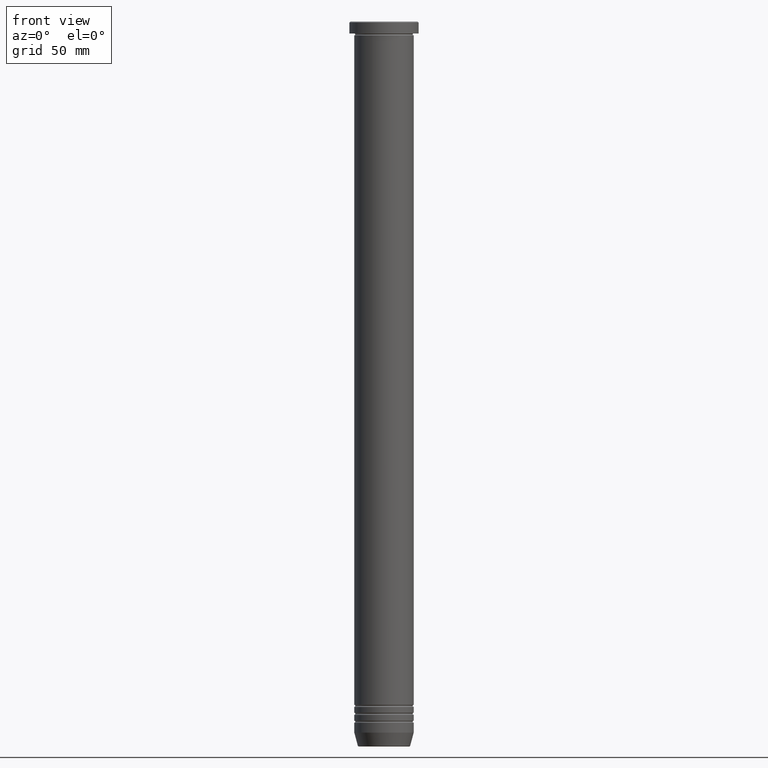
[diagram: clean part render]
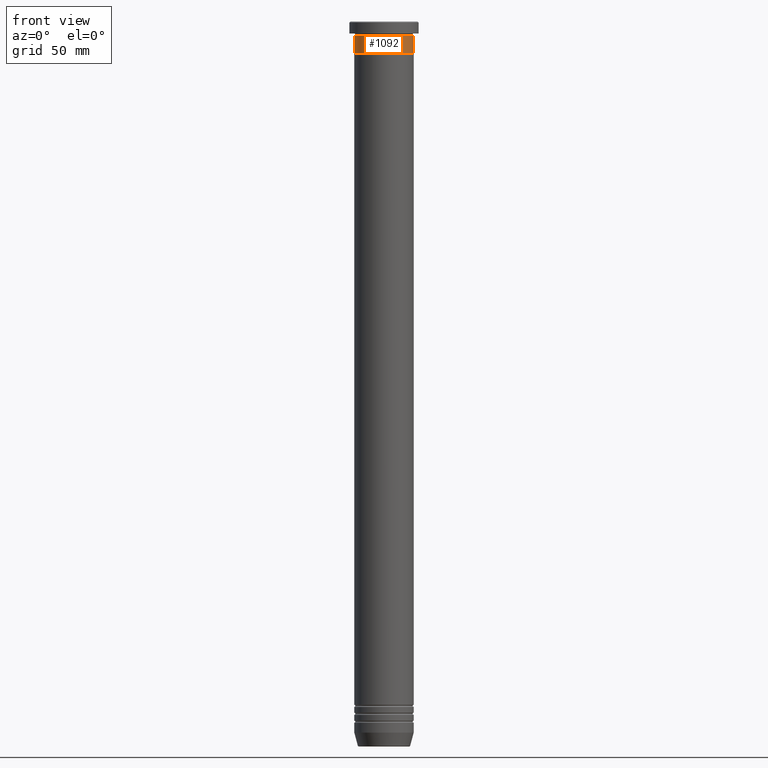
[diagram: same view with one face highlighted and labeled with its STEP entity id]
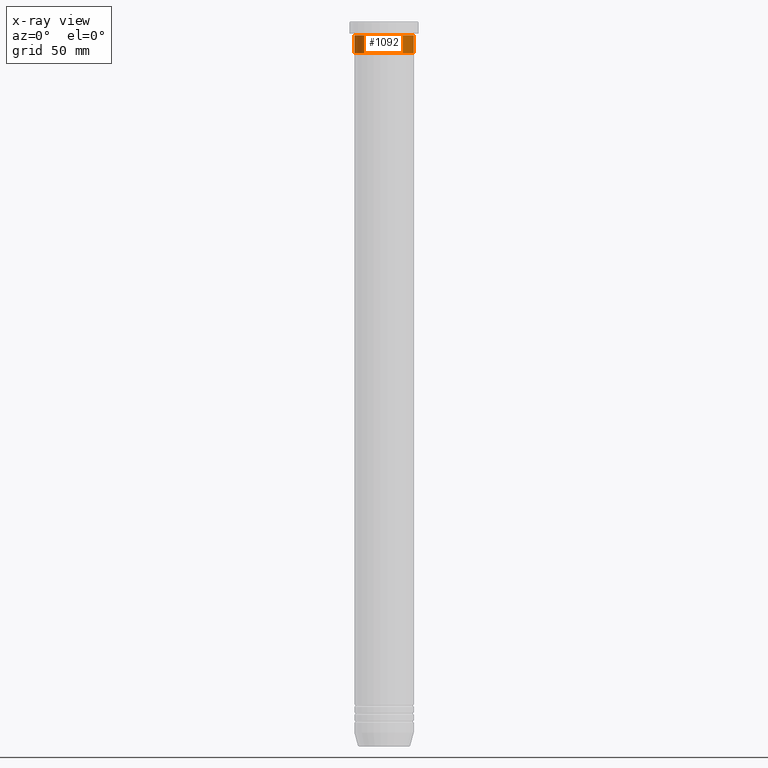
[diagram: x-ray of the same camera — body ghosted, the highlighted face saturated]
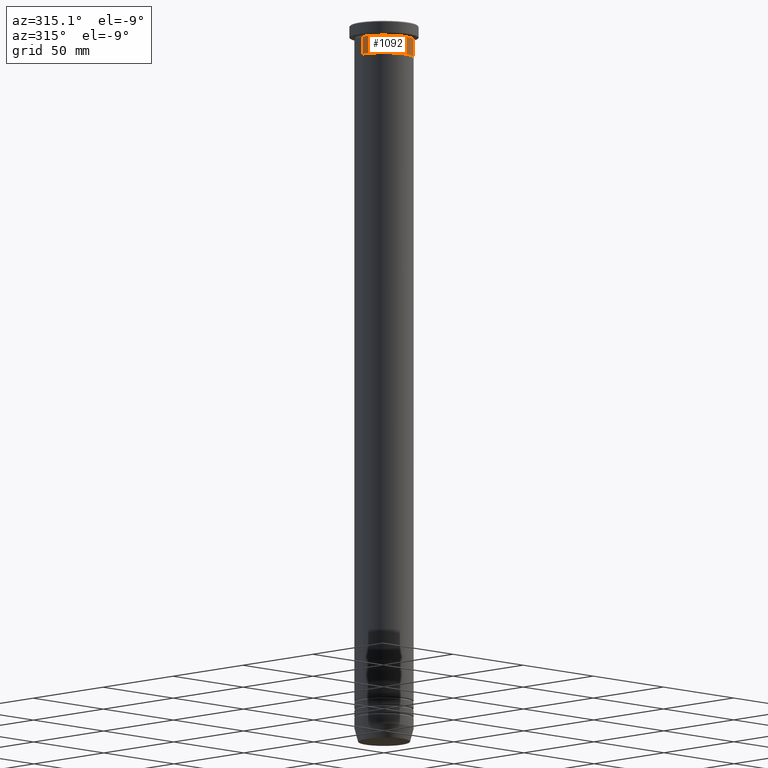
[diagram: same view with one face highlighted and labeled with its STEP entity id]
A machine part, front view. The second image highlights one B-rep face of the part: STEP entity #1092.
The next image is the same camera in x-ray: the body ghosted, the highlighted face saturated — about 0% of this face is hidden behind the body in this view.
A second angle (auxiliary view) of the same face is appended — the face is thin or edge-on in the first view.
In plain terms, the highlighted cylindrical surface (edge-blend (fillet) strip) has radius 15 mm, axis along (-0, -0, 1).
Its self-contained STEP definition (entity closure, byte-faithful):
#1 = EDGE_CURVE ( 'NONE', #826, #245, #367, .T. ) ;
#65 = DIRECTION ( 'NONE',  ( -0.000000000000000000, -0.000000000000000000, 1.000000000000000000 ) ) ;
#78 = DIRECTION ( 'NONE',  ( -0.000000000000000000, -0.000000000000000000, 1.000000000000000000 ) ) ;
#83 = EDGE_LOOP ( 'NONE', ( #755, #401, #418, #286 ) ) ;
#109 = CARTESIAN_POINT ( 'NONE',  ( 15.00000000000000000, 0.000000000000000000, -16.00000000000000000 ) ) ;
#124 = DIRECTION ( 'NONE',  ( 1.000000000000000000, 0.000000000000000000, 0.000000000000000000 ) ) ;
#148 = DIRECTION ( 'NONE',  ( -0.000000000000000000, -0.000000000000000000, 1.000000000000000000 ) ) ;
#163 = CARTESIAN_POINT ( 'NONE',  ( 0.000000000000000000, 0.000000000000000000, 0.000000000000000000 ) ) ;
#245 = VERTEX_POINT ( 'NONE', #109 ) ;
#286 = ORIENTED_EDGE ( 'NONE', *, *, #757, .F. ) ;
#367 = CIRCLE ( 'NONE', #443, 15.00000000000000000 ) ;
#384 = VERTEX_POINT ( 'NONE', #938 ) ;
#399 = DIRECTION ( 'NONE',  ( -0.000000000000000000, -0.000000000000000000, 1.000000000000000000 ) ) ;
#401 = ORIENTED_EDGE ( 'NONE', *, *, #1, .T. ) ;
#413 = EDGE_CURVE ( 'NONE', #826, #384, #494, .T. ) ;
#418 = ORIENTED_EDGE ( 'NONE', *, *, #957, .T. ) ;
#423 = DIRECTION ( 'NONE',  ( 1.000000000000000000, 0.000000000000000000, 0.000000000000000000 ) ) ;
#443 = AXIS2_PLACEMENT_3D ( 'NONE', #496, #1144, #785 ) ;
#448 = VECTOR ( 'NONE', #399, 1000.000000000000000 ) ;
#465 = VERTEX_POINT ( 'NONE', #869 ) ;
#484 = LINE ( 'NONE', #649, #448 ) ;
#494 = LINE ( 'NONE', #663, #672 ) ;
#496 = CARTESIAN_POINT ( 'NONE',  ( 0.000000000000000000, 0.000000000000000000, -16.00000000000000000 ) ) ;
#551 = CARTESIAN_POINT ( 'NONE',  ( 0.000000000000000000, 0.000000000000000000, -6.999999999999999112 ) ) ;
#649 = CARTESIAN_POINT ( 'NONE',  ( 15.00000000000000000, 0.000000000000000000, 0.000000000000000000 ) ) ;
#663 = CARTESIAN_POINT ( 'NONE',  ( -15.00000000000000000, 1.836970198721029589E-15, 0.000000000000000000 ) ) ;
#672 = VECTOR ( 'NONE', #65, 1000.000000000000000 ) ;
#713 = CIRCLE ( 'NONE', #817, 15.00000000000000000 ) ;
#755 = ORIENTED_EDGE ( 'NONE', *, *, #413, .F. ) ;
#757 = EDGE_CURVE ( 'NONE', #384, #465, #713, .T. ) ;
#759 = AXIS2_PLACEMENT_3D ( 'NONE', #163, #78, #423 ) ;
#785 = DIRECTION ( 'NONE',  ( 1.000000000000000000, 0.000000000000000000, 0.000000000000000000 ) ) ;
#817 = AXIS2_PLACEMENT_3D ( 'NONE', #551, #148, #124 ) ;
#826 = VERTEX_POINT ( 'NONE', #1056 ) ;
#869 = CARTESIAN_POINT ( 'NONE',  ( 15.00000000000000000, 0.000000000000000000, -6.999999999999999112 ) ) ;
#938 = CARTESIAN_POINT ( 'NONE',  ( -15.00000000000000000, 1.836970198721029589E-15, -6.999999999999999112 ) ) ;
#957 = EDGE_CURVE ( 'NONE', #245, #465, #484, .T. ) ;
#1032 = CYLINDRICAL_SURFACE ( 'NONE', #759, 15.00000000000000000 ) ;
#1044 = FACE_OUTER_BOUND ( 'NONE', #83, .T. ) ;
#1056 = CARTESIAN_POINT ( 'NONE',  ( -15.00000000000000000, 1.836970198721029589E-15, -16.00000000000000000 ) ) ;
#1092 = ADVANCED_FACE ( 'NONE', ( #1044 ), #1032, .T. ) ;
#1144 = DIRECTION ( 'NONE',  ( -0.000000000000000000, -0.000000000000000000, 1.000000000000000000 ) ) ;